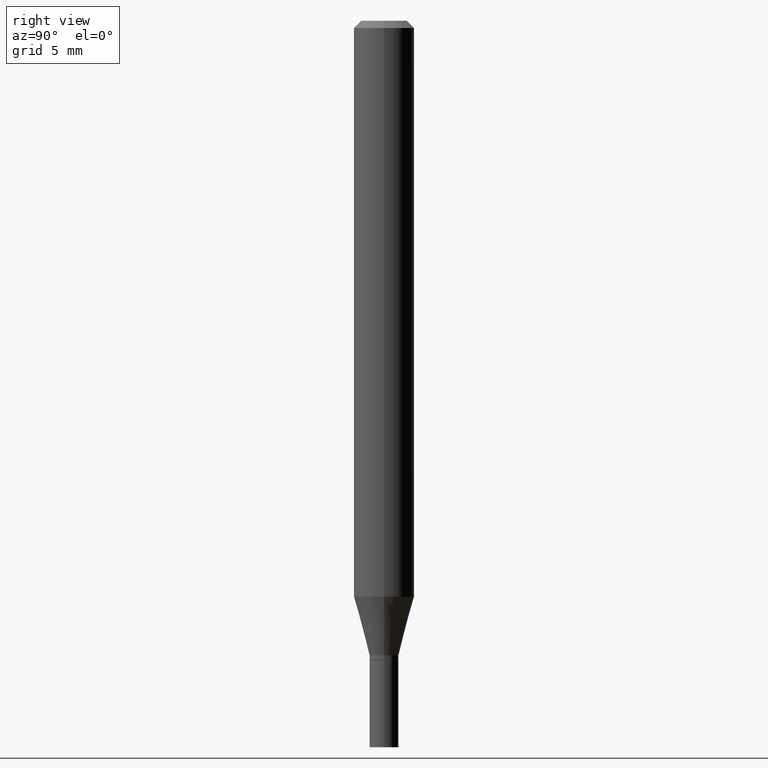
[diagram: clean part render]
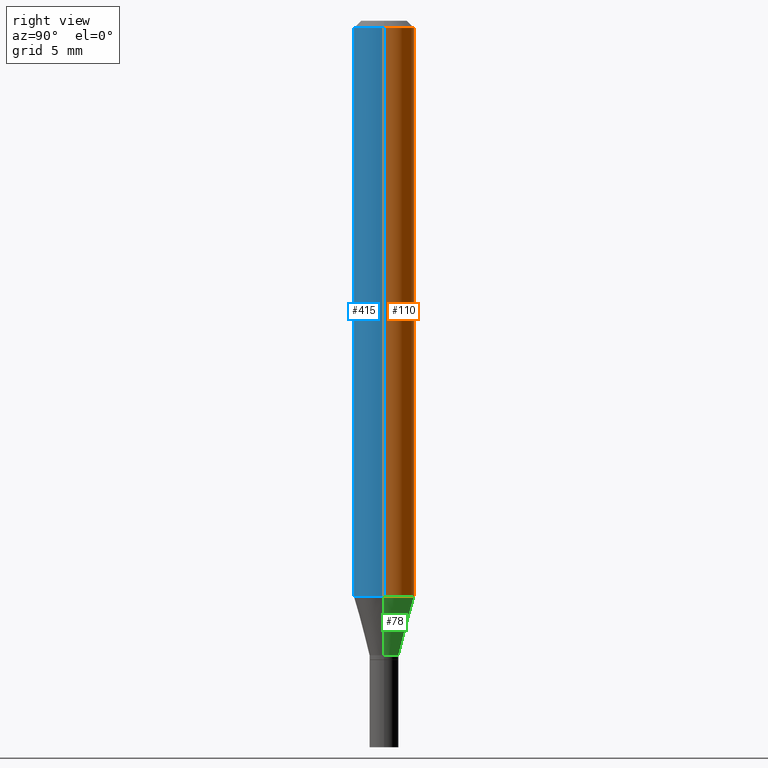
[diagram: same view with three faces highlighted in distinct colors, each labeled with its STEP entity id]
A machine part, right view with three faces highlighted in distinct colors.
Their STEP definitions:

[orange] entity #110 — the highlighted cylindrical surface (edge-blend (fillet) strip) has radius 1.5875 mm, axis along (-0, 0, 1).
#14 = CARTESIAN_POINT ( 'NONE',  ( 0.06250000000000000000, -4.586788184357076846E-15, -1.188708348754012878 ) ) ;
#20 = ORIENTED_EDGE ( 'NONE', *, *, #104, .F. ) ;
#29 = AXIS2_PLACEMENT_3D ( 'NONE', #149, #391, #39 ) ;
#39 = DIRECTION ( 'NONE',  ( 1.000000000000000000, -6.982962677686262766E-15, 0.000000000000000000 ) ) ;
#56 = CARTESIAN_POINT ( 'NONE',  ( 0.06250000000000000000, -4.888073874380388472E-16, -0.01499999999999999944 ) ) ;
#62 = VERTEX_POINT ( 'NONE', #14 ) ;
#81 = DIRECTION ( 'NONE',  ( -2.445468806185136597E-29, 3.491481338843145583E-15, 1.000000000000000000 ) ) ;
#104 = EDGE_CURVE ( 'NONE', #288, #344, #119, .T. ) ;
#110 = ADVANCED_FACE ( 'NONE', ( #143 ), #246, .T. ) ;
#113 = AXIS2_PLACEMENT_3D ( 'NONE', #166, #81, #383 ) ;
#119 = CIRCLE ( 'NONE', #113, 0.06250000000000000000 ) ;
#143 = FACE_OUTER_BOUND ( 'NONE', #320, .T. ) ;
#149 = CARTESIAN_POINT ( 'NONE',  ( 2.906949186529780913E-29, -4.150353017001685176E-15, -1.188708348754012878 ) ) ;
#166 = CARTESIAN_POINT ( 'NONE',  ( 3.668203209277705088E-31, -5.237222008264718399E-17, -0.01499999999999999944 ) ) ;
#180 = VERTEX_POINT ( 'NONE', #282 ) ;
#192 = CARTESIAN_POINT ( 'NONE',  ( -0.06250000000000000000, -1.657273408692103709E-15, -0.01499999999999999944 ) ) ;
#222 = LINE ( 'NONE', #404, #463 ) ;
#227 = ORIENTED_EDGE ( 'NONE', *, *, #462, .T. ) ;
#241 = AXIS2_PLACEMENT_3D ( 'NONE', #385, #322, #315 ) ;
#246 = CYLINDRICAL_SURFACE ( 'NONE', #241, 0.06250000000000000000 ) ;
#255 = EDGE_CURVE ( 'NONE', #62, #288, #222, .T. ) ;
#264 = DIRECTION ( 'NONE',  ( -2.445468806185136877E-29, 3.491481338843145188E-15, 1.000000000000000000 ) ) ;
#279 = EDGE_CURVE ( 'NONE', #180, #344, #373, .T. ) ;
#282 = CARTESIAN_POINT ( 'NONE',  ( -0.06250000000000000000, -3.706263807151623349E-15, -1.188708348754012878 ) ) ;
#288 = VERTEX_POINT ( 'NONE', #56 ) ;
#315 = DIRECTION ( 'NONE',  ( 1.000000000000000000, -6.982962677686266711E-15, 4.876176775795935793E-29 ) ) ;
#320 = EDGE_LOOP ( 'NONE', ( #227, #445, #20, #457 ) ) ;
#322 = DIRECTION ( 'NONE',  ( -2.445468806185136597E-29, 3.491481338843145583E-15, 1.000000000000000000 ) ) ;
#344 = VERTEX_POINT ( 'NONE', #192 ) ;
#367 = CARTESIAN_POINT ( 'NONE',  ( -0.06250000000000000000, 4.440892098500626162E-16, -3.074334431409316114E-30 ) ) ;
#373 = LINE ( 'NONE', #367, #458 ) ;
#383 = DIRECTION ( 'NONE',  ( 1.000000000000000000, -6.982962677686266711E-15, 0.000000000000000000 ) ) ;
#385 = CARTESIAN_POINT ( 'NONE',  ( 0.000000000000000000, 0.000000000000000000, 0.000000000000000000 ) ) ;
#391 = DIRECTION ( 'NONE',  ( -2.445468806185136597E-29, 3.491481338843145583E-15, 1.000000000000000000 ) ) ;
#402 = DIRECTION ( 'NONE',  ( -2.445468806185136877E-29, 3.491481338843145188E-15, 1.000000000000000000 ) ) ;
#404 = CARTESIAN_POINT ( 'NONE',  ( 0.06250000000000000000, -4.364351673553916694E-16, 3.047610484872459871E-30 ) ) ;
#445 = ORIENTED_EDGE ( 'NONE', *, *, #279, .T. ) ;
#447 = CIRCLE ( 'NONE', #29, 0.06250000000000000000 ) ;
#457 = ORIENTED_EDGE ( 'NONE', *, *, #255, .F. ) ;
#458 = VECTOR ( 'NONE', #264, 39.37007874015748143 ) ;
#462 = EDGE_CURVE ( 'NONE', #62, #180, #447, .T. ) ;
#463 = VECTOR ( 'NONE', #402, 39.37007874015748143 ) ;

[blue] entity #415 — the highlighted cylindrical surface (edge-blend (fillet) strip) has radius 1.5875 mm, axis along (-0, 0, 1).
#7 = CARTESIAN_POINT ( 'NONE',  ( 0.000000000000000000, 0.000000000000000000, 0.000000000000000000 ) ) ;
#12 = EDGE_LOOP ( 'NONE', ( #45, #398, #26, #390 ) ) ;
#14 = CARTESIAN_POINT ( 'NONE',  ( 0.06250000000000000000, -4.586788184357076846E-15, -1.188708348754012878 ) ) ;
#26 = ORIENTED_EDGE ( 'NONE', *, *, #255, .T. ) ;
#27 = DIRECTION ( 'NONE',  ( -2.445468806185136597E-29, 3.491481338843145583E-15, 1.000000000000000000 ) ) ;
#28 = AXIS2_PLACEMENT_3D ( 'NONE', #414, #27, #440 ) ;
#36 = DIRECTION ( 'NONE',  ( 1.000000000000000000, -6.982962677686266711E-15, 4.876176775795935793E-29 ) ) ;
#45 = ORIENTED_EDGE ( 'NONE', *, *, #279, .F. ) ;
#56 = CARTESIAN_POINT ( 'NONE',  ( 0.06250000000000000000, -4.888073874380388472E-16, -0.01499999999999999944 ) ) ;
#62 = VERTEX_POINT ( 'NONE', #14 ) ;
#66 = EDGE_CURVE ( 'NONE', #344, #288, #98, .T. ) ;
#73 = EDGE_CURVE ( 'NONE', #180, #62, #167, .T. ) ;
#98 = CIRCLE ( 'NONE', #278, 0.06250000000000000000 ) ;
#167 = CIRCLE ( 'NONE', #28, 0.06250000000000000000 ) ;
#180 = VERTEX_POINT ( 'NONE', #282 ) ;
#190 = FACE_OUTER_BOUND ( 'NONE', #12, .T. ) ;
#192 = CARTESIAN_POINT ( 'NONE',  ( -0.06250000000000000000, -1.657273408692103709E-15, -0.01499999999999999944 ) ) ;
#222 = LINE ( 'NONE', #404, #463 ) ;
#255 = EDGE_CURVE ( 'NONE', #62, #288, #222, .T. ) ;
#264 = DIRECTION ( 'NONE',  ( -2.445468806185136877E-29, 3.491481338843145188E-15, 1.000000000000000000 ) ) ;
#270 = DIRECTION ( 'NONE',  ( 1.000000000000000000, -6.982962677686266711E-15, 0.000000000000000000 ) ) ;
#278 = AXIS2_PLACEMENT_3D ( 'NONE', #301, #446, #270 ) ;
#279 = EDGE_CURVE ( 'NONE', #180, #344, #373, .T. ) ;
#282 = CARTESIAN_POINT ( 'NONE',  ( -0.06250000000000000000, -3.706263807151623349E-15, -1.188708348754012878 ) ) ;
#288 = VERTEX_POINT ( 'NONE', #56 ) ;
#301 = CARTESIAN_POINT ( 'NONE',  ( 3.668203209277705088E-31, -5.237222008264718399E-17, -0.01499999999999999944 ) ) ;
#328 = CYLINDRICAL_SURFACE ( 'NONE', #410, 0.06250000000000000000 ) ;
#344 = VERTEX_POINT ( 'NONE', #192 ) ;
#367 = CARTESIAN_POINT ( 'NONE',  ( -0.06250000000000000000, 4.440892098500626162E-16, -3.074334431409316114E-30 ) ) ;
#373 = LINE ( 'NONE', #367, #458 ) ;
#390 = ORIENTED_EDGE ( 'NONE', *, *, #66, .F. ) ;
#398 = ORIENTED_EDGE ( 'NONE', *, *, #73, .T. ) ;
#402 = DIRECTION ( 'NONE',  ( -2.445468806185136877E-29, 3.491481338843145188E-15, 1.000000000000000000 ) ) ;
#404 = CARTESIAN_POINT ( 'NONE',  ( 0.06250000000000000000, -4.364351673553916694E-16, 3.047610484872459871E-30 ) ) ;
#410 = AXIS2_PLACEMENT_3D ( 'NONE', #7, #456, #36 ) ;
#414 = CARTESIAN_POINT ( 'NONE',  ( 2.906949186529780913E-29, -4.150353017001685176E-15, -1.188708348754012878 ) ) ;
#415 = ADVANCED_FACE ( 'NONE', ( #190 ), #328, .T. ) ;
#440 = DIRECTION ( 'NONE',  ( 1.000000000000000000, -6.982962677686262766E-15, 0.000000000000000000 ) ) ;
#446 = DIRECTION ( 'NONE',  ( -2.445468806185136597E-29, 3.491481338843145583E-15, 1.000000000000000000 ) ) ;
#456 = DIRECTION ( 'NONE',  ( -2.445468806185136597E-29, 3.491481338843145583E-15, 1.000000000000000000 ) ) ;
#458 = VECTOR ( 'NONE', #264, 39.37007874015748143 ) ;
#463 = VECTOR ( 'NONE', #402, 39.37007874015748143 ) ;

[green] entity #78 — the highlighted conical surface has half-angle 15 deg.
#14 = CARTESIAN_POINT ( 'NONE',  ( 0.06250000000000000000, -4.586788184357076846E-15, -1.188708348754012878 ) ) ;
#17 = ORIENTED_EDGE ( 'NONE', *, *, #70, .T. ) ;
#29 = AXIS2_PLACEMENT_3D ( 'NONE', #149, #391, #39 ) ;
#30 = VERTEX_POINT ( 'NONE', #237 ) ;
#39 = DIRECTION ( 'NONE',  ( 1.000000000000000000, -6.982962677686262766E-15, 0.000000000000000000 ) ) ;
#48 = LINE ( 'NONE', #358, #400 ) ;
#58 = CONICAL_SURFACE ( 'NONE', #71, 0.03000000000000020012, 0.2617993877991501295 ) ;
#61 = CARTESIAN_POINT ( 'NONE',  ( 3.203564136102529457E-29, -4.573840553884521577E-15, -1.310000000000000275 ) ) ;
#62 = VERTEX_POINT ( 'NONE', #14 ) ;
#70 = EDGE_CURVE ( 'NONE', #441, #30, #371, .T. ) ;
#71 = AXIS2_PLACEMENT_3D ( 'NONE', #61, #164, #234 ) ;
#78 = ADVANCED_FACE ( 'NONE', ( #228 ), #58, .T. ) ;
#131 = CARTESIAN_POINT ( 'NONE',  ( 3.203564136102529457E-29, -4.573840553884521577E-15, -1.310000000000000275 ) ) ;
#135 = DIRECTION ( 'NONE',  ( -2.445468806185136597E-29, 3.491481338843145583E-15, 1.000000000000000000 ) ) ;
#149 = CARTESIAN_POINT ( 'NONE',  ( 2.906949186529780913E-29, -4.150353017001685176E-15, -1.188708348754012878 ) ) ;
#164 = DIRECTION ( 'NONE',  ( -2.445468806185136597E-29, 3.491481338843145583E-15, 1.000000000000000000 ) ) ;
#180 = VERTEX_POINT ( 'NONE', #282 ) ;
#195 = CARTESIAN_POINT ( 'NONE',  ( 0.03000000000000020012, -4.783329434215110683E-15, -1.310000000000000275 ) ) ;
#223 = EDGE_CURVE ( 'NONE', #30, #180, #48, .T. ) ;
#228 = FACE_OUTER_BOUND ( 'NONE', #453, .T. ) ;
#231 = DIRECTION ( 'NONE',  ( 0.2588190451025214611, 1.565188264969621573E-15, 0.9659258262890682012 ) ) ;
#234 = DIRECTION ( 'NONE',  ( 1.000000000000000000, -6.982962677686253300E-15, 0.000000000000000000 ) ) ;
#237 = CARTESIAN_POINT ( 'NONE',  ( -0.03000000000000020012, -4.033470770154056946E-15, -1.310000000000000275 ) ) ;
#242 = VECTOR ( 'NONE', #231, 39.37007874015747433 ) ;
#271 = AXIS2_PLACEMENT_3D ( 'NONE', #131, #135, #309 ) ;
#282 = CARTESIAN_POINT ( 'NONE',  ( -0.06250000000000000000, -3.706263807151623349E-15, -1.188708348754012878 ) ) ;
#298 = ORIENTED_EDGE ( 'NONE', *, *, #223, .T. ) ;
#306 = ORIENTED_EDGE ( 'NONE', *, *, #462, .F. ) ;
#309 = DIRECTION ( 'NONE',  ( 1.000000000000000000, -6.982962677686253300E-15, 0.000000000000000000 ) ) ;
#312 = EDGE_CURVE ( 'NONE', #441, #62, #333, .T. ) ;
#333 = LINE ( 'NONE', #195, #242 ) ;
#358 = CARTESIAN_POINT ( 'NONE',  ( -0.03000000000000020012, -4.360677733156489754E-15, -1.310000000000000275 ) ) ;
#371 = CIRCLE ( 'NONE', #271, 0.03000000000000020012 ) ;
#387 = ORIENTED_EDGE ( 'NONE', *, *, #312, .F. ) ;
#391 = DIRECTION ( 'NONE',  ( -2.445468806185136597E-29, 3.491481338843145583E-15, 1.000000000000000000 ) ) ;
#400 = VECTOR ( 'NONE', #466, 39.37007874015747433 ) ;
#427 = CARTESIAN_POINT ( 'NONE',  ( 0.03000000000000020012, -4.783329434215110683E-15, -1.310000000000000275 ) ) ;
#441 = VERTEX_POINT ( 'NONE', #427 ) ;
#447 = CIRCLE ( 'NONE', #29, 0.06250000000000000000 ) ;
#453 = EDGE_LOOP ( 'NONE', ( #17, #298, #306, #387 ) ) ;
#462 = EDGE_CURVE ( 'NONE', #62, #180, #447, .T. ) ;
#466 = DIRECTION ( 'NONE',  ( -0.2588190451025214611, 5.211531920934551042E-15, 0.9659258262890682012 ) ) ;